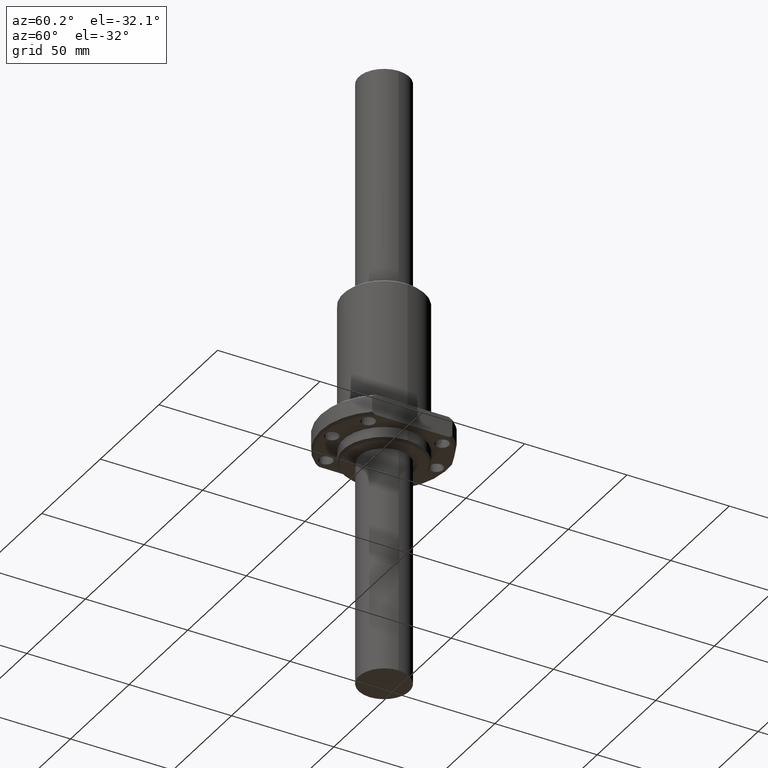
[diagram: clean part render]
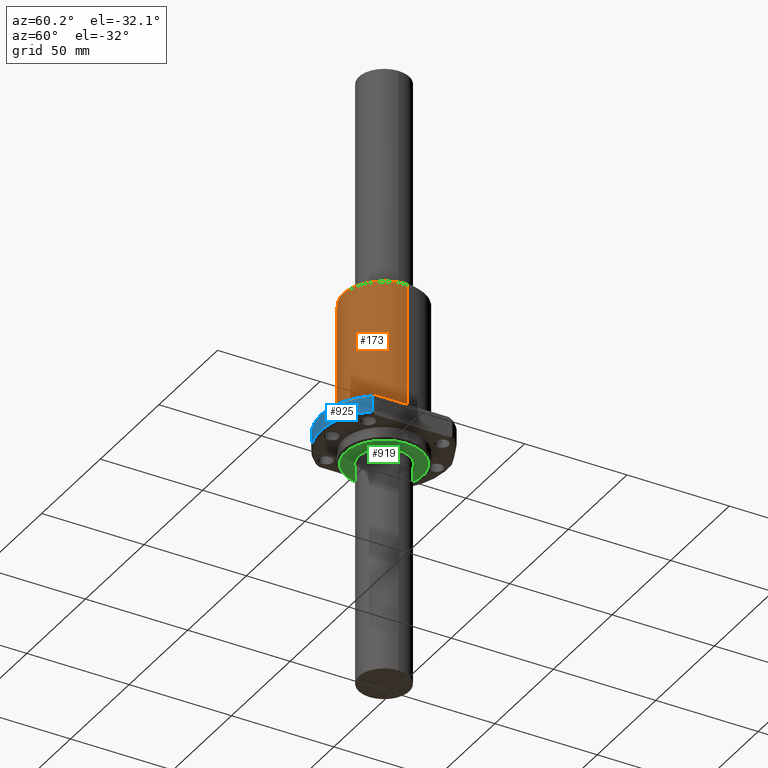
[diagram: same view with three faces highlighted in distinct colors, each labeled with its STEP entity id]
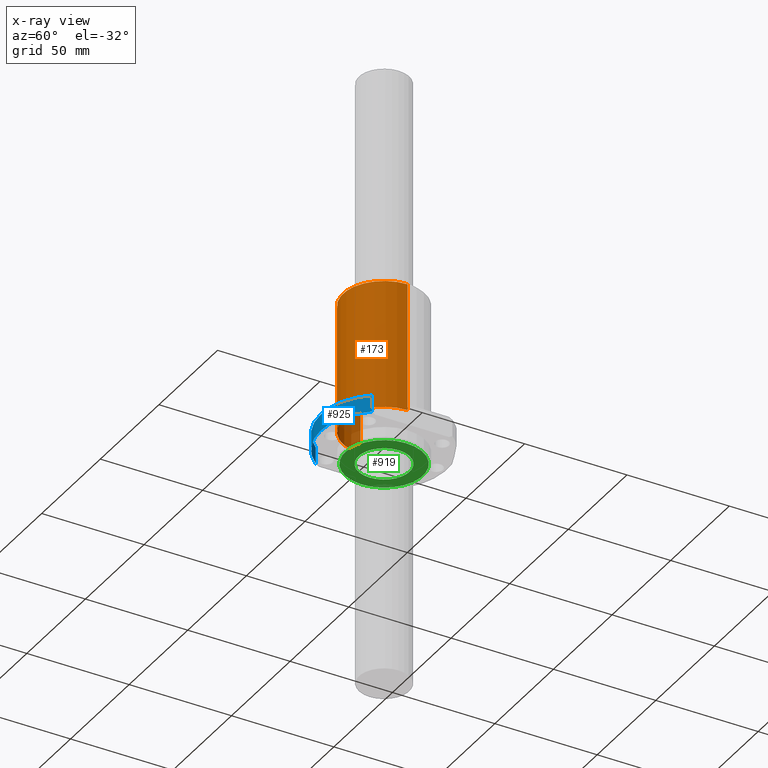
[diagram: x-ray of the same camera — body ghosted, the three highlighted faces saturated]
A machine part, auxiliary view with three faces highlighted in distinct colors.
The next image is the same camera in x-ray (body ghosted, the three faces saturated) — at least one of them is partly hidden behind the body in this view.
Their STEP definitions:

[orange] entity #173 — the highlighted cylindrical surface (partial cylindrical patch) has radius 20 mm, axis along (0, 0, -1).
#8 = AXIS2_PLACEMENT_3D ( 'NONE', #1840, #1339, #1583 ) ;
#173 = ADVANCED_FACE ( 'NONE', ( #1567 ), #1722, .T. ) ;
#391 = VERTEX_POINT ( 'NONE', #1652 ) ;
#526 = EDGE_CURVE ( 'NONE', #1743, #391, #995, .T. ) ;
#576 = CARTESIAN_POINT ( 'NONE',  ( 19.99999610000000100, 0.0000000000000000000, -15.99999400000000300 ) ) ;
#728 = VERTEX_POINT ( 'NONE', #1678 ) ;
#768 = VERTEX_POINT ( 'NONE', #1662 ) ;
#831 = AXIS2_PLACEMENT_3D ( 'NONE', #1757, #1755, #1752 ) ;
#890 = EDGE_CURVE ( 'NONE', #768, #1743, #1524, .T. ) ;
#901 = EDGE_CURVE ( 'NONE', #768, #728, #969, .T. ) ;
#923 = ORIENTED_EDGE ( 'NONE', *, *, #890, .T. ) ;
#969 = CIRCLE ( 'NONE', #1699, 19.99999610000000100 ) ;
#995 = CIRCLE ( 'NONE', #831, 19.99999610000000100 ) ;
#1045 = VECTOR ( 'NONE', #1518, 1000.000000000000000 ) ;
#1079 = DIRECTION ( 'NONE',  ( 0.0000000000000000000, -0.0000000000000000000, 1.000000000000000000 ) ) ;
#1083 = CARTESIAN_POINT ( 'NONE',  ( -19.99999610000000100, 2.449293120682454800E-015, -79.00000029999999600 ) ) ;
#1099 = LINE ( 'NONE', #1083, #1220 ) ;
#1150 = ORIENTED_EDGE ( 'NONE', *, *, #526, .T. ) ;
#1188 = EDGE_LOOP ( 'NONE', ( #1781, #1523, #923, #1150 ) ) ;
#1220 = VECTOR ( 'NONE', #1079, 1000.000000000000000 ) ;
#1304 = EDGE_CURVE ( 'NONE', #728, #391, #1099, .T. ) ;
#1339 = DIRECTION ( 'NONE',  ( 0.0000000000000000000, -0.0000000000000000000, 1.000000000000000000 ) ) ;
#1503 = DIRECTION ( 'NONE',  ( 1.000000000000000000, 0.0000000000000000000, 0.0000000000000000000 ) ) ;
#1504 = DIRECTION ( 'NONE',  ( -0.0000000000000000000, -0.0000000000000000000, -1.000000000000000000 ) ) ;
#1518 = DIRECTION ( 'NONE',  ( 0.0000000000000000000, -0.0000000000000000000, 1.000000000000000000 ) ) ;
#1520 = CARTESIAN_POINT ( 'NONE',  ( 19.99999610000000100, 0.0000000000000000000, -79.00000029999999600 ) ) ;
#1523 = ORIENTED_EDGE ( 'NONE', *, *, #901, .F. ) ;
#1524 = LINE ( 'NONE', #1520, #1045 ) ;
#1527 = CARTESIAN_POINT ( 'NONE',  ( 0.0000000000000000000, 0.0000000000000000000, -79.00000029999999600 ) ) ;
#1567 = FACE_OUTER_BOUND ( 'NONE', #1188, .T. ) ;
#1583 = DIRECTION ( 'NONE',  ( 1.000000000000000000, 0.0000000000000000000, 0.0000000000000000000 ) ) ;
#1652 = CARTESIAN_POINT ( 'NONE',  ( -19.99999610000000100, 2.449293120682454800E-015, -15.99999400000000300 ) ) ;
#1662 = CARTESIAN_POINT ( 'NONE',  ( 19.99999610000000100, 0.0000000000000000000, -79.00000029999999600 ) ) ;
#1678 = CARTESIAN_POINT ( 'NONE',  ( -19.99999610000000100, 2.449293120682454800E-015, -79.00000029999999600 ) ) ;
#1699 = AXIS2_PLACEMENT_3D ( 'NONE', #1527, #1504, #1503 ) ;
#1722 = CYLINDRICAL_SURFACE ( 'NONE', #8, 19.99999610000000100 ) ;
#1743 = VERTEX_POINT ( 'NONE', #576 ) ;
#1752 = DIRECTION ( 'NONE',  ( 1.000000000000000000, 0.0000000000000000000, 0.0000000000000000000 ) ) ;
#1755 = DIRECTION ( 'NONE',  ( -0.0000000000000000000, 0.0000000000000000000, -1.000000000000000000 ) ) ;
#1757 = CARTESIAN_POINT ( 'NONE',  ( 0.0000000000000000000, 0.0000000000000000000, -15.99999400000000300 ) ) ;
#1781 = ORIENTED_EDGE ( 'NONE', *, *, #1304, .F. ) ;
#1840 = CARTESIAN_POINT ( 'NONE',  ( 0.0000000000000000000, 0.0000000000000000000, -79.00000029999999600 ) ) ;

[blue] entity #925 — the highlighted cylindrical surface (partial cylindrical patch) has radius 31 mm, axis along (0, 0, -1).
#34 = AXIS2_PLACEMENT_3D ( 'NONE', #1463, #1461, #1458 ) ;
#84 = CARTESIAN_POINT ( 'NONE',  ( 24.00000000000000000, -19.62141671218366000, -14.99999390011035400 ) ) ;
#128 = EDGE_LOOP ( 'NONE', ( #759, #234, #385, #623 ) ) ;
#220 = VECTOR ( 'NONE', #861, 1000.000000000000000 ) ;
#234 = ORIENTED_EDGE ( 'NONE', *, *, #1508, .F. ) ;
#316 = CYLINDRICAL_SURFACE ( 'NONE', #34, 30.99999979999999800 ) ;
#319 = VERTEX_POINT ( 'NONE', #84 ) ;
#361 = VECTOR ( 'NONE', #1412, 1000.000000000000000 ) ;
#385 = ORIENTED_EDGE ( 'NONE', *, *, #1239, .T. ) ;
#394 = AXIS2_PLACEMENT_3D ( 'NONE', #1153, #1149, #1147 ) ;
#449 = VERTEX_POINT ( 'NONE', #1805 ) ;
#623 = ORIENTED_EDGE ( 'NONE', *, *, #1024, .F. ) ;
#694 = DIRECTION ( 'NONE',  ( 0.0000000000000000000, 0.0000000000000000000, 1.000000000000000000 ) ) ;
#698 = FACE_OUTER_BOUND ( 'NONE', #128, .T. ) ;
#718 = CARTESIAN_POINT ( 'NONE',  ( -24.00000000000000000, -19.62141671218366000, -14.99999400000007200 ) ) ;
#759 = ORIENTED_EDGE ( 'NONE', *, *, #1337, .F. ) ;
#810 = CIRCLE ( 'NONE', #1034, 30.99999979999999800 ) ;
#843 = CIRCLE ( 'NONE', #394, 30.99999979999999800 ) ;
#861 = DIRECTION ( 'NONE',  ( 0.0000000000000000000, 0.0000000000000000000, 1.000000000000000000 ) ) ;
#862 = CARTESIAN_POINT ( 'NONE',  ( -24.00000000000000000, -19.62141686999999700, -10.99999399999999900 ) ) ;
#865 = LINE ( 'NONE', #862, #220 ) ;
#892 = CARTESIAN_POINT ( 'NONE',  ( 0.0000000000000000000, 0.0000000000000000000, -6.999994199999999700 ) ) ;
#925 = ADVANCED_FACE ( 'NONE', ( #698 ), #316, .T. ) ;
#1024 = EDGE_CURVE ( 'NONE', #1268, #319, #1435, .T. ) ;
#1034 = AXIS2_PLACEMENT_3D ( 'NONE', #892, #694, #1568 ) ;
#1098 = CARTESIAN_POINT ( 'NONE',  ( 24.00000000000000000, -19.62141685811987600, -6.999994192370172300 ) ) ;
#1147 = DIRECTION ( 'NONE',  ( 1.000000000000000000, 0.0000000000000000000, 2.294311708835852800E-015 ) ) ;
#1149 = DIRECTION ( 'NONE',  ( 0.0000000000000000000, 0.0000000000000000000, 1.000000000000000000 ) ) ;
#1153 = CARTESIAN_POINT ( 'NONE',  ( 0.0000000000000000000, 0.0000000000000000000, -14.99999400000007200 ) ) ;
#1239 = EDGE_CURVE ( 'NONE', #1612, #319, #843, .T. ) ;
#1268 = VERTEX_POINT ( 'NONE', #1098 ) ;
#1337 = EDGE_CURVE ( 'NONE', #449, #1268, #810, .T. ) ;
#1412 = DIRECTION ( 'NONE',  ( -0.0000000000000000000, -0.0000000000000000000, -1.000000000000000000 ) ) ;
#1425 = CARTESIAN_POINT ( 'NONE',  ( 24.00000000000000000, -19.62141686999999700, -10.99999399999999900 ) ) ;
#1435 = LINE ( 'NONE', #1425, #361 ) ;
#1458 = DIRECTION ( 'NONE',  ( 1.000000000000000000, 0.0000000000000000000, 0.0000000000000000000 ) ) ;
#1461 = DIRECTION ( 'NONE',  ( 0.0000000000000000000, 0.0000000000000000000, 1.000000000000000000 ) ) ;
#1463 = CARTESIAN_POINT ( 'NONE',  ( 0.0000000000000000000, 0.0000000000000000000, -14.99999400000000100 ) ) ;
#1508 = EDGE_CURVE ( 'NONE', #1612, #449, #865, .T. ) ;
#1568 = DIRECTION ( 'NONE',  ( 1.000000000000000000, 0.0000000000000000000, 0.0000000000000000000 ) ) ;
#1612 = VERTEX_POINT ( 'NONE', #718 ) ;
#1805 = CARTESIAN_POINT ( 'NONE',  ( -24.00000000000000000, -19.62141671218366000, -6.999994199889681700 ) ) ;

[green] entity #919 — the highlighted planar face has unit normal (0, 0, 1).
#31 = EDGE_CURVE ( 'NONE', #309, #593, #1124, .T. ) ;
#159 = EDGE_CURVE ( 'NONE', #362, #1224, #1132, .T. ) ;
#218 = DIRECTION ( 'NONE',  ( 0.0000000000000000000, 0.0000000000000000000, -1.000000000000000000 ) ) ;
#252 = FACE_OUTER_BOUND ( 'NONE', #1303, .T. ) ;
#309 = VERTEX_POINT ( 'NONE', #1155 ) ;
#362 = VERTEX_POINT ( 'NONE', #841 ) ;
#424 = AXIS2_PLACEMENT_3D ( 'NONE', #1477, #1465, #1464 ) ;
#447 = CARTESIAN_POINT ( 'NONE',  ( 0.0000000000000000000, 0.0000000000000000000, 0.0000000000000000000 ) ) ;
#450 = ORIENTED_EDGE ( 'NONE', *, *, #159, .F. ) ;
#593 = VERTEX_POINT ( 'NONE', #1749 ) ;
#716 = CIRCLE ( 'NONE', #894, 12.50000000000000000 ) ;
#807 = CIRCLE ( 'NONE', #828, 18.99999000000000000 ) ;
#828 = AXIS2_PLACEMENT_3D ( 'NONE', #1053, #1048, #1047 ) ;
#841 = CARTESIAN_POINT ( 'NONE',  ( 18.99999000000000000, 2.388060220449176600E-015, 0.0000000000000000000 ) ) ;
#894 = AXIS2_PLACEMENT_3D ( 'NONE', #978, #974, #972 ) ;
#919 = ADVANCED_FACE ( 'NONE', ( #1094, #252 ), #1476, .F. ) ;
#970 = ORIENTED_EDGE ( 'NONE', *, *, #1396, .F. ) ;
#972 = DIRECTION ( 'NONE',  ( 1.000000000000000000, 0.0000000000000000000, 0.0000000000000000000 ) ) ;
#974 = DIRECTION ( 'NONE',  ( 0.0000000000000000000, -0.0000000000000000000, 1.000000000000000000 ) ) ;
#978 = CARTESIAN_POINT ( 'NONE',  ( 0.0000000000000000000, 0.0000000000000000000, 0.0000000000000000000 ) ) ;
#1020 = EDGE_LOOP ( 'NONE', ( #1345, #970 ) ) ;
#1047 = DIRECTION ( 'NONE',  ( -1.000000000000000000, 0.0000000000000000000, 0.0000000000000000000 ) ) ;
#1048 = DIRECTION ( 'NONE',  ( 0.0000000000000000000, 0.0000000000000000000, -1.000000000000000000 ) ) ;
#1053 = CARTESIAN_POINT ( 'NONE',  ( 0.0000000000000000000, 0.0000000000000000000, 0.0000000000000000000 ) ) ;
#1094 = FACE_BOUND ( 'NONE', #1020, .T. ) ;
#1124 = CIRCLE ( 'NONE', #1513, 12.50000000000000000 ) ;
#1132 = CIRCLE ( 'NONE', #1829, 18.99999000000000000 ) ;
#1155 = CARTESIAN_POINT ( 'NONE',  ( 12.50000000000000000, 0.0000000000000000000, 0.0000000000000000000 ) ) ;
#1176 = CARTESIAN_POINT ( 'NONE',  ( -18.99999000000000000, 0.0000000000000000000, 0.0000000000000000000 ) ) ;
#1186 = DIRECTION ( 'NONE',  ( -1.000000000000000000, 0.0000000000000000000, 0.0000000000000000000 ) ) ;
#1224 = VERTEX_POINT ( 'NONE', #1176 ) ;
#1288 = DIRECTION ( 'NONE',  ( 1.000000000000000000, 0.0000000000000000000, 0.0000000000000000000 ) ) ;
#1303 = EDGE_LOOP ( 'NONE', ( #1647, #450 ) ) ;
#1322 = EDGE_CURVE ( 'NONE', #1224, #362, #807, .T. ) ;
#1345 = ORIENTED_EDGE ( 'NONE', *, *, #31, .F. ) ;
#1396 = EDGE_CURVE ( 'NONE', #593, #309, #716, .T. ) ;
#1410 = CARTESIAN_POINT ( 'NONE',  ( 0.0000000000000000000, 0.0000000000000000000, 0.0000000000000000000 ) ) ;
#1464 = DIRECTION ( 'NONE',  ( -1.000000000000000000, 0.0000000000000000000, 0.0000000000000000000 ) ) ;
#1465 = DIRECTION ( 'NONE',  ( 0.0000000000000000000, 0.0000000000000000000, -1.000000000000000000 ) ) ;
#1467 = DIRECTION ( 'NONE',  ( 0.0000000000000000000, -0.0000000000000000000, 1.000000000000000000 ) ) ;
#1476 = PLANE ( 'NONE',  #424 ) ;
#1477 = CARTESIAN_POINT ( 'NONE',  ( 19.22798987999999900, -19.22798987999999900, 0.0000000000000000000 ) ) ;
#1513 = AXIS2_PLACEMENT_3D ( 'NONE', #447, #1467, #1288 ) ;
#1647 = ORIENTED_EDGE ( 'NONE', *, *, #1322, .F. ) ;
#1749 = CARTESIAN_POINT ( 'NONE',  ( -12.50000000000000000, 1.530808498934191500E-015, 0.0000000000000000000 ) ) ;
#1829 = AXIS2_PLACEMENT_3D ( 'NONE', #1410, #218, #1186 ) ;